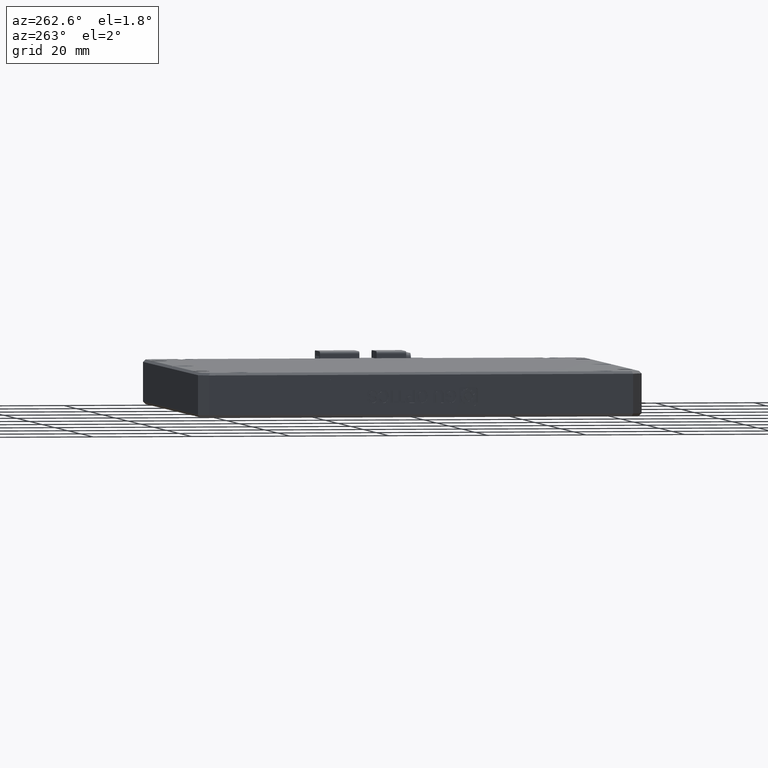
[diagram: clean part render]
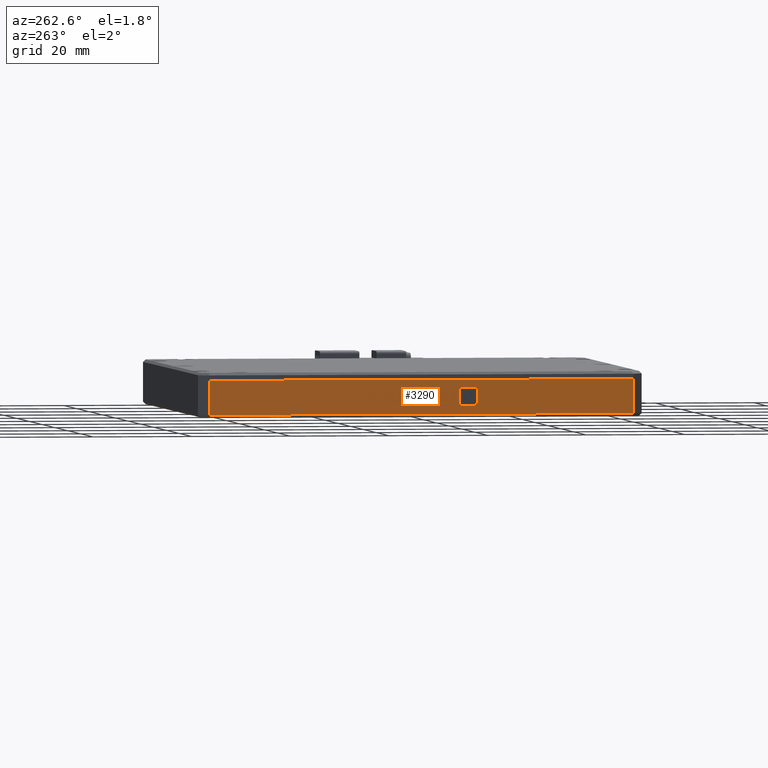
[diagram: same view with one face highlighted and labeled with its STEP entity id]
A machine part, auxiliary view. The second image highlights one B-rep face of the part: STEP entity #3290.
In plain terms, the highlighted planar face has unit normal (1, 0, 0).
Its self-contained STEP definition (entity closure, byte-faithful):
#6 = CARTESIAN_POINT ( 'NONE',  ( -77.07925925925924600, 23.42304713821372200, 1.292340100727977600 ) ) ;
#40 = CARTESIAN_POINT ( 'NONE',  ( -77.07925925925924600, 20.86301468824078100, 1.094665682123356000 ) ) ;
#45 = LINE ( 'NONE', #10327, #10717 ) ;
#47 = CARTESIAN_POINT ( 'NONE',  ( -77.07925925925924600, 30.28952902031220500, -0.1495203643883426200 ) ) ;
#49 = VERTEX_POINT ( 'NONE', #3426 ) ;
#56 = ORIENTED_EDGE ( 'NONE', *, *, #15913, .F. ) ;
#108 = CARTESIAN_POINT ( 'NONE',  ( -77.07925925925924600, 38.92426401219959300, 1.257456379797735400 ) ) ;
#112 = CARTESIAN_POINT ( 'NONE',  ( -77.07925925925924600, 30.86078375259968000, -0.1495203643883426200 ) ) ;
#123 = VERTEX_POINT ( 'NONE', #5346 ) ;
#191 = CARTESIAN_POINT ( 'NONE',  ( -77.07925925925924600, 70.93999999999996900, -2.500000000000000900 ) ) ;
#208 = CARTESIAN_POINT ( 'NONE',  ( -77.07925925925924600, 19.58485879056878100, -0.8124870443640894700 ) ) ;
#226 = ORIENTED_EDGE ( 'NONE', *, *, #11319, .F. ) ;
#236 = CARTESIAN_POINT ( 'NONE',  ( -77.07925925925924600, 35.30825535887358100, 0.1916775804467543700 ) ) ;
#239 = B_SPLINE_CURVE_WITH_KNOTS ( 'NONE', 3,
 ( #4079, #5476, #15191, #6856 ),
 .UNSPECIFIED., .F., .F.,
 ( 4, 4 ),
 ( 9.000000000000000000, 10.00000000000000000 ),
 .UNSPECIFIED. ) ;
#265 = CARTESIAN_POINT ( 'NONE',  ( -77.07925925925924600, 34.56352847947928100, 1.106293589100037400 ) ) ;
#275 = VECTOR ( 'NONE', #14746, 1000.000000000000000 ) ;
#288 = VERTEX_POINT ( 'NONE', #7298 ) ;
#315 = VERTEX_POINT ( 'NONE', #10515 ) ;
#319 = EDGE_CURVE ( 'NONE', #4731, #16075, #9759, .T. ) ;
#336 = EDGE_CURVE ( 'NONE', #3884, #9138, #8729, .T. ) ;
#339 = CARTESIAN_POINT ( 'NONE',  ( -77.07925925925924600, 37.55014286563404400, 0.2847008362606984200 ) ) ;
#385 = CARTESIAN_POINT ( 'NONE',  ( -77.07925925925924600, 38.85916125395203100, 0.5946656821233485800 ) ) ;
#396 = CARTESIAN_POINT ( 'NONE',  ( -77.07925925925924600, 37.66946412036628500, 0.1760610309605170600 ) ) ;
#404 = DIRECTION ( 'NONE',  ( -0.0000000000000000000, -0.0000000000000000000, 1.000000000000000000 ) ) ;
#414 = EDGE_CURVE ( 'NONE', #5827, #8842, #8484, .T. ) ;
#418 = CARTESIAN_POINT ( 'NONE',  ( -77.07925925925924600, 34.59962907439560100, 1.928055352215251500 ) ) ;
#426 = CARTESIAN_POINT ( 'NONE',  ( -77.07925925925924600, 23.07590003166967600, 0.5481540542163730900 ) ) ;
#428 = CARTESIAN_POINT ( 'NONE',  ( -77.07925925925924600, 31.13566206520144400, 0.6644331239837528700 ) ) ;
#452 = CARTESIAN_POINT ( 'NONE',  ( -77.07925925925924600, 37.91540787374656000, 0.1760610309605170600 ) ) ;
#488 = B_SPLINE_CURVE_WITH_KNOTS ( 'NONE', 3,
 ( #12400, #15122, #11207, #11136 ),
 .UNSPECIFIED., .F., .F.,
 ( 4, 4 ),
 ( 3.000000000000000000, 4.000000000000000000 ),
 .UNSPECIFIED. ) ;
#500 = LINE ( 'NONE', #10371, #7855 ) ;
#519 = EDGE_CURVE ( 'NONE', #16996, #15179, #8351, .T. ) ;
#552 = DIRECTION ( 'NONE',  ( -0.0000000000000000000, 1.000000000000000000, -4.504920936912119600E-015 ) ) ;
#571 = ORIENTED_EDGE ( 'NONE', *, *, #2791, .F. ) ;
#598 = CARTESIAN_POINT ( 'NONE',  ( -77.07925925925924600, 22.06711149732685200, 2.059781961193163400 ) ) ;
#607 = VERTEX_POINT ( 'NONE', #10795 ) ;
#614 = B_SPLINE_CURVE_WITH_KNOTS ( 'NONE', 3,
 ( #14798, #13384, #5062, #6444 ),
 .UNSPECIFIED., .F., .F.,
 ( 4, 4 ),
 ( 4.000000000000000000, 5.000000000000000000 ),
 .UNSPECIFIED. ) ;
#654 = VERTEX_POINT ( 'NONE', #16424 ) ;
#694 = CARTESIAN_POINT ( 'NONE',  ( -77.07925925925924600, 35.68082161090166700, -0.1844040853185499600 ) ) ;
#710 = ORIENTED_EDGE ( 'NONE', *, *, #10323, .F. ) ;
#766 = CARTESIAN_POINT ( 'NONE',  ( -77.07925925925924600, 23.07590003166967600, 0.5481540542163730900 ) ) ;
#809 = CARTESIAN_POINT ( 'NONE',  ( -77.07925925925924600, 20.26458653213977700, -0.5814896892637408900 ) ) ;
#818 = ORIENTED_EDGE ( 'NONE', *, *, #2026, .F. ) ;
#937 = CARTESIAN_POINT ( 'NONE',  ( -77.07925925925924600, 20.86301468824078100, 1.094665682123356000 ) ) ;
#1024 = B_SPLINE_CURVE_WITH_KNOTS ( 'NONE', 3,
 ( #16351, #9400, #2496, #12215 ),
 .UNSPECIFIED., .F., .F.,
 ( 4, 4 ),
 ( 7.000000000000000000, 8.000000000000000000 ),
 .UNSPECIFIED. ) ;
#1046 = CARTESIAN_POINT ( 'NONE',  ( -77.07925925925924600, 38.93136244378445800, 2.148816574497554900 ) ) ;
#1124 = LINE ( 'NONE', #1505, #8522 ) ;
#1130 = CARTESIAN_POINT ( 'NONE',  ( -77.07925925925924600, 22.59861501274060900, 1.676061030960514800 ) ) ;
#1133 = VERTEX_POINT ( 'NONE', #11759 ) ;
#1158 = CARTESIAN_POINT ( 'NONE',  ( -77.07925925925924600, 38.61321750057187100, 2.396991263518607300 ) ) ;
#1219 = CARTESIAN_POINT ( 'NONE',  ( -77.07925925925924600, 31.13566206520144400, 0.6644331239837528700 ) ) ;
#1222 = EDGE_CURVE ( 'NONE', #1660, #4731, #7098, .T. ) ;
#1239 = VECTOR ( 'NONE', #13709, 1000.000000000000000 ) ;
#1252 = EDGE_CURVE ( 'NONE', #9197, #4217, #6063, .T. ) ;
#1279 = VECTOR ( 'NONE', #9933, 1000.000000000000000 ) ;
#1306 = VECTOR ( 'NONE', #9165, 1000.000000000000000 ) ;
#1312 = EDGE_CURVE ( 'NONE', #8842, #7938, #10723, .T. ) ;
#1332 = CARTESIAN_POINT ( 'NONE',  ( -77.07925925925924600, 38.92426401219959300, 1.652805217006999300 ) ) ;
#1400 = CARTESIAN_POINT ( 'NONE',  ( -77.07925925925924600, 25.00680863091261900, -0.1495203643883218100 ) ) ;
#1412 = CARTESIAN_POINT ( 'NONE',  ( -77.07925925925924600, 37.96962637023114000, 2.396991263518610800 ) ) ;
#1436 = CARTESIAN_POINT ( 'NONE',  ( -77.07925925925924600, 32.67602171906811700, 2.350479635611708100 ) ) ;
#1474 = VERTEX_POINT ( 'NONE', #17207 ) ;
#1505 = CARTESIAN_POINT ( 'NONE',  ( -77.07925925925924600, 22.59861501274060900, 1.257456379797790900 ) ) ;
#1513 = CARTESIAN_POINT ( 'NONE',  ( -77.07925925925924600, 22.05629483967395300, 2.396991263518666300 ) ) ;
#1525 = EDGE_CURVE ( 'NONE', #14403, #15918, #500, .T. ) ;
#1636 = B_SPLINE_CURVE_WITH_KNOTS ( 'NONE', 3,
 ( #16626, #13791, #11087, #2749 ),
 .UNSPECIFIED., .F., .F.,
 ( 4, 4 ),
 ( 4.000000000000000000, 5.000000000000000000 ),
 .UNSPECIFIED. ) ;
#1645 = CARTESIAN_POINT ( 'NONE',  ( -77.07925925925924600, 31.14276049678585400, 0.1219101385862772500 ) ) ;
#1660 = VERTEX_POINT ( 'NONE', #6869 ) ;
#1676 = CARTESIAN_POINT ( 'NONE',  ( -77.07925925925924600, 37.89370695433067500, 2.071409868169837900 ) ) ;
#1730 = ORIENTED_EDGE ( 'NONE', *, *, #15451, .F. ) ;
#1766 = B_SPLINE_CURVE_WITH_KNOTS ( 'NONE', 3,
 ( #5340, #8117, #9535, #1219 ),
 .UNSPECIFIED., .F., .F.,
 ( 4, 4 ),
 ( 6.000000000000000000, 7.000000000000000000 ),
 .UNSPECIFIED. ) ;
#1798 = DIRECTION ( 'NONE',  ( -0.0000000000000000000, 1.000000000000000000, -0.0000000000000000000 ) ) ;
#1801 = LINE ( 'NONE', #9295, #9166 ) ;
#1805 = CARTESIAN_POINT ( 'NONE',  ( -77.07925925925924600, 38.24443707872235600, 1.358287910354801600 ) ) ;
#1842 = DIRECTION ( 'NONE',  ( -0.0000000000000000000, 1.000000000000000000, -0.0000000000000000000 ) ) ;
#1866 = CARTESIAN_POINT ( 'NONE',  ( -77.07925925925924600, 35.82184378504991400, 2.059781961193115000 ) ) ;
#1874 = EDGE_CURVE ( 'NONE', #9239, #8858, #4767, .T. ) ;
#1893 = B_SPLINE_CURVE_WITH_KNOTS ( 'NONE', 3,
 ( #10356, #4798, #15952, #7601 ),
 .UNSPECIFIED., .F., .F.,
 ( 4, 4 ),
 ( 9.000000000000000000, 10.00000000000000000 ),
 .UNSPECIFIED. ) ;
#1907 = CARTESIAN_POINT ( 'NONE',  ( -77.07925925925924600, 22.53357985860313000, 0.5481540542163730900 ) ) ;
#1933 = DIRECTION ( 'NONE',  ( -0.0000000000000000000, -1.000000000000000000, 3.366795205228711200E-015 ) ) ;
#1980 = DIRECTION ( 'NONE',  ( 1.000000000000000000, 0.0000000000000000000, 0.0000000000000000000 ) ) ;
#1982 = CARTESIAN_POINT ( 'NONE',  ( -77.07925925925924600, 37.02594059413586100, 0.5016424263094010300 ) ) ;
#1986 = VERTEX_POINT ( 'NONE', #8963 ) ;
#2010 = B_SPLINE_CURVE_WITH_KNOTS ( 'NONE', 3,
 ( #8704, #1805, #12932, #4577 ),
 .UNSPECIFIED., .F., .F.,
 ( 4, 4 ),
 ( 3.000000000000000000, 4.000000000000000000 ),
 .UNSPECIFIED. ) ;
#2026 = EDGE_CURVE ( 'NONE', #5468, #4782, #45, .T. ) ;
#2057 = EDGE_LOOP ( 'NONE', ( #8316, #226, #8339, #14788, #2688, #9381, #13099, #5706, #16156, #8048, #818, #14989, #12725, #11238 ) ) ;
#2086 = EDGE_CURVE ( 'NONE', #13702, #14403, #16364, .T. ) ;
#2110 = VECTOR ( 'NONE', #5147, 1000.000000000000000 ) ;
#2129 = EDGE_CURVE ( 'NONE', #11427, #3944, #7651, .T. ) ;
#2148 = FACE_OUTER_BOUND ( 'NONE', #2459, .T. ) ;
#2161 = CARTESIAN_POINT ( 'NONE',  ( -77.07925925925924600, 22.56609743567170100, -0.1844040853185048600 ) ) ;
#2187 = EDGE_LOOP ( 'NONE', ( #14971, #11210, #6495, #11426 ) ) ;
#2197 = EDGE_CURVE ( 'NONE', #18032, #3884, #4658, .T. ) ;
#2205 = CARTESIAN_POINT ( 'NONE',  ( -77.07925925925924600, 37.28249819283777100, 1.187688937937247900 ) ) ;
#2235 = DIRECTION ( 'NONE',  ( -0.0000000000000000000, -1.000000000000000000, -0.0000000000000000000 ) ) ;
#2288 = ORIENTED_EDGE ( 'NONE', *, *, #6460, .F. ) ;
#2326 = B_SPLINE_CURVE_WITH_KNOTS ( 'NONE', 3,
 ( #7869, #12091, #3772, #13462 ),
 .UNSPECIFIED., .F., .F.,
 ( 4, 4 ),
 ( 3.000000000000000000, 4.000000000000000000 ),
 .UNSPECIFIED. ) ;
#2364 = CARTESIAN_POINT ( 'NONE',  ( -77.07925925925924600, 22.02370965849506500, -0.1844040853185013900 ) ) ;
#2384 = ORIENTED_EDGE ( 'NONE', *, *, #12396, .F. ) ;
#2396 = EDGE_CURVE ( 'NONE', #7871, #16788, #16564, .T. ) ;
#2399 = CARTESIAN_POINT ( 'NONE',  ( -77.07925925925924600, 25.00680863091262700, 1.420247077472224200 ) ) ;
#2409 = CARTESIAN_POINT ( 'NONE',  ( -77.07925925925924600, 34.97929375800832500, 2.358118900078930700 ) ) ;
#2459 = EDGE_LOOP ( 'NONE', ( #16543, #8948, #10777, #3793 ) ) ;
#2491 = EDGE_LOOP ( 'NONE', ( #3627, #16144, #9554, #2384, #6440, #14940, #9301, #4552 ) ) ;
#2496 = CARTESIAN_POINT ( 'NONE',  ( -77.07925925925924600, 16.76722659435756700, 2.915938289259529400 ) ) ;
#2510 = CARTESIAN_POINT ( 'NONE',  ( -77.07925925925924600, 35.96644897704556600, 0.1760610309605240000 ) ) ;
#2519 = CARTESIAN_POINT ( 'NONE',  ( -77.07925925925924600, 34.56352847947928100, 1.106293589100037400 ) ) ;
#2543 = B_SPLINE_CURVE_WITH_KNOTS ( 'NONE', 3,
 ( #2364, #10682, #5129, #14880 ),
 .UNSPECIFIED., .F., .F.,
 ( 4, 4 ),
 ( 12.00000000000000000, 13.00000000000000000 ),
 .UNSPECIFIED. ) ;
#2561 = FACE_BOUND ( 'NONE', #2491, .T. ) ;
#2568 = CARTESIAN_POINT ( 'NONE',  ( -77.07925925925924600, 35.70252253031767300, 2.396991263518617900 ) ) ;
#2620 = EDGE_LOOP ( 'NONE', ( #13059, #5486, #14153, #14811, #13463, #12269, #18069, #10255, #15371, #3668 ) ) ;
#2644 = VERTEX_POINT ( 'NONE', #12903 ) ;
#2645 = EDGE_LOOP ( 'NONE', ( #17004, #17510, #14998, #14418, #13348, #11763, #10891, #10218, #9541, #7965, #1730, #18018, #15706, #2288 ) ) ;
#2652 = CARTESIAN_POINT ( 'NONE',  ( -77.07925925925924600, 16.53616129270404800, 0.003206651843962876600 ) ) ;
#2688 = ORIENTED_EDGE ( 'NONE', *, *, #15785, .F. ) ;
#2700 = VECTOR ( 'NONE', #1842, 1000.000000000000000 ) ;
#2749 = CARTESIAN_POINT ( 'NONE',  ( -77.07925925925924600, 24.47523751138845000, 2.059781961193149600 ) ) ;
#2751 = CARTESIAN_POINT ( 'NONE',  ( -77.07925925925924600, 38.92426401219959300, 1.652805217006999300 ) ) ;
#2783 = CARTESIAN_POINT ( 'NONE',  ( -77.07925925925924600, 36.97165449354120900, 1.490014519332564500 ) ) ;
#2791 = EDGE_CURVE ( 'NONE', #12200, #1133, #3414, .T. ) ;
#2801 = CARTESIAN_POINT ( 'NONE',  ( -77.07925925925924600, 37.90459121609365700, -0.1844040853185569000 ) ) ;
#2915 = CARTESIAN_POINT ( 'NONE',  ( -77.07925925925924600, 27.79459932858694400, 2.396991263518645400 ) ) ;
#2930 = B_SPLINE_CURVE_WITH_KNOTS ( 'NONE', 3,
 ( #13638, #12582, #12218, #12157 ),
 .UNSPECIFIED., .F., .F.,
 ( 4, 4 ),
 ( 3.000000000000000000, 4.000000000000000000 ),
 .UNSPECIFIED. ) ;
#2957 = CARTESIAN_POINT ( 'NONE',  ( -77.07925925925924600, 35.70252253031767300, 2.396991263518617900 ) ) ;
#2992 = CARTESIAN_POINT ( 'NONE',  ( -77.07925925925924600, 37.96962637023113300, 0.8621075425884750000 ) ) ;
#3021 = CARTESIAN_POINT ( 'NONE',  ( -77.07925925925924600, 29.79054308196713700, 1.478386612355858700 ) ) ;
#3030 = FACE_BOUND ( 'NONE', #3762, .T. ) ;
#3049 = B_SPLINE_CURVE_WITH_KNOTS ( 'NONE', 3,
 ( #15849, #17272, #8898, #598 ),
 .UNSPECIFIED., .F., .F.,
 ( 4, 4 ),
 ( 4.000000000000000000, 5.000000000000000000 ),
 .UNSPECIFIED. ) ;
#3068 = CARTESIAN_POINT ( 'NONE',  ( -77.07925925925924600, 32.67602171906811700, 2.350479635611708100 ) ) ;
#3113 = EDGE_CURVE ( 'NONE', #123, #7871, #12713, .T. ) ;
#3131 = LINE ( 'NONE', #3724, #17487 ) ;
#3135 = VERTEX_POINT ( 'NONE', #937 ) ;
#3223 = DIRECTION ( 'NONE',  ( -0.0000000000000000000, -7.459310946700470900E-015, -1.000000000000000000 ) ) ;
#3290 = ADVANCED_FACE ( 'NONE', ( #3030, #17385, #6255, #13629, #2561, #16956, #13219, #9502, #5846, #2148 ), #16082, .F. ) ;
#3293 = B_SPLINE_CURVE_WITH_KNOTS ( 'NONE', 3,
 ( #13196, #9110, #2205, #11919 ),
 .UNSPECIFIED., .F., .F.,
 ( 4, 4 ),
 ( 4.000000000000000000, 5.000000000000000000 ),
 .UNSPECIFIED. ) ;
#3296 = CARTESIAN_POINT ( 'NONE',  ( -77.07925925925924600, 37.55744410954972800, 0.5016424263094010300 ) ) ;
#3329 = CARTESIAN_POINT ( 'NONE',  ( -77.07925925925924600, 35.35165719770536400, 2.028886882772314300 ) ) ;
#3330 = CARTESIAN_POINT ( 'NONE',  ( -77.07925925925924600, 36.97165449354120900, 1.490014519332564500 ) ) ;
#3391 = CARTESIAN_POINT ( 'NONE',  ( -77.07925925925924600, 35.71333918797023400, 0.1760610309605240000 ) ) ;
#3398 = CARTESIAN_POINT ( 'NONE',  ( -77.07925925925924600, 37.23916395811652800, 1.869915817331480000 ) ) ;
#3414 = B_SPLINE_CURVE_WITH_KNOTS ( 'NONE', 3,
 ( #428, #1645, #112, #47 ),
 .UNSPECIFIED., .F., .F.,
 ( 4, 4 ),
 ( 5.000000000000000000, 6.000000000000000000 ),
 .UNSPECIFIED. ) ;
#3419 = B_SPLINE_CURVE_WITH_KNOTS ( 'NONE', 3,
 ( #8907, #15855, #6169, #15921 ),
 .UNSPECIFIED., .F., .F.,
 ( 4, 4 ),
 ( 2.000000000000000000, 3.000000000000000000 ),
 .UNSPECIFIED. ) ;
#3426 = CARTESIAN_POINT ( 'NONE',  ( -77.07925925925924600, 22.59861501274060900, 1.676061030960514800 ) ) ;
#3431 = EDGE_CURVE ( 'NONE', #15204, #11366, #11251, .T. ) ;
#3447 = CARTESIAN_POINT ( 'NONE',  ( -77.07925925925924600, 37.54284162171836700, 0.6954972126804182000 ) ) ;
#3452 = CARTESIAN_POINT ( 'NONE',  ( -77.07925925925924600, 37.89370695433067500, 2.071409868169837900 ) ) ;
#3468 = ORIENTED_EDGE ( 'NONE', *, *, #6804, .F. ) ;
#3490 = VECTOR ( 'NONE', #10581, 1000.000000000000000 ) ;
#3495 = VERTEX_POINT ( 'NONE', #5932 ) ;
#3506 = EDGE_LOOP ( 'NONE', ( #571, #4192, #7816, #15939, #10719, #9059, #9464 ) ) ;
#3549 = CARTESIAN_POINT ( 'NONE',  ( -77.07925925925924600, 33.44616774394656700, -0.1495203643883530300 ) ) ;
#3568 = CARTESIAN_POINT ( 'NONE',  ( -77.07925925925924600, 37.54662745189683200, 2.063770603702497200 ) ) ;
#3571 = CARTESIAN_POINT ( 'NONE',  ( -77.07925925925924600, 36.97165449354120900, 1.931874984448859400 ) ) ;
#3584 = EDGE_CURVE ( 'NONE', #16168, #6347, #14091, .T. ) ;
#3596 = CARTESIAN_POINT ( 'NONE',  ( -77.07925925925924600, -17.05999999999999200, 4.500000000000000000 ) ) ;
#3625 = CARTESIAN_POINT ( 'NONE',  ( -77.07925925925924600, 37.96962637023113300, 0.8621075425884750000 ) ) ;
#3627 = ORIENTED_EDGE ( 'NONE', *, *, #5532, .F. ) ;
#3657 = CARTESIAN_POINT ( 'NONE',  ( -77.07925925925924600, 34.25978321176701500, 2.350479635611701000 ) ) ;
#3668 = ORIENTED_EDGE ( 'NONE', *, *, #9325, .F. ) ;
#3724 = CARTESIAN_POINT ( 'NONE',  ( -77.07925925925924600, -15.05999999999997700, 4.500000000000000000 ) ) ;
#3727 = B_SPLINE_CURVE_WITH_KNOTS ( 'NONE', 3,
 ( #7159, #15498, #236, #9960 ),
 .UNSPECIFIED., .F., .F.,
 ( 4, 4 ),
 ( 2.000000000000000000, 3.000000000000000000 ),
 .UNSPECIFIED. ) ;
#3741 = CARTESIAN_POINT ( 'NONE',  ( -77.07925925925924600, 36.20150846866273800, 0.6411773100302754500 ) ) ;
#3762 = EDGE_LOOP ( 'NONE', ( #17231, #56, #710, #4851 ) ) ;
#3763 = EDGE_CURVE ( 'NONE', #1986, #15204, #488, .T. ) ;
#3772 = CARTESIAN_POINT ( 'NONE',  ( -77.07925925925924600, 21.40540246541742400, 1.703305487423478800 ) ) ;
#3790 = CARTESIAN_POINT ( 'NONE',  ( -77.07925925925924600, 37.68034838212949500, 0.8155959146814439900 ) ) ;
#3793 = ORIENTED_EDGE ( 'NONE', *, *, #2129, .T. ) ;
#3805 = CARTESIAN_POINT ( 'NONE',  ( -77.07925925925924600, 36.12910446649916500, 0.3312124641676218500 ) ) ;
#3816 = DIRECTION ( 'NONE',  ( -0.0000000000000000000, -2.775557561562827500E-015, -1.000000000000000000 ) ) ;
#3879 = DIRECTION ( 'NONE',  ( -0.0000000000000000000, 1.000000000000000000, -6.952995436024301200E-015 ) ) ;
#3884 = VERTEX_POINT ( 'NONE', #13969 ) ;
#3885 = CARTESIAN_POINT ( 'NONE',  ( -77.07925925925924600, 26.63390435833287700, 1.117921496076795100 ) ) ;
#3890 = EDGE_CURVE ( 'NONE', #10434, #16168, #17284, .T. ) ;
#3924 = EDGE_CURVE ( 'NONE', #654, #9197, #17158, .T. ) ;
#3941 = CARTESIAN_POINT ( 'NONE',  ( -77.07925925925924600, 26.67000495324897700, 0.2807121937512362400 ) ) ;
#3944 = VERTEX_POINT ( 'NONE', #191 ) ;
#3947 = EDGE_LOOP ( 'NONE', ( #3468, #4675, #12968, #14502, #17399, #11709, #13449, #7647 ) ) ;
#4068 = EDGE_CURVE ( 'NONE', #15730, #654, #2930, .T. ) ;
#4079 = CARTESIAN_POINT ( 'NONE',  ( -77.07925925925924600, 36.71137866877080600, 0.6411773100302754500 ) ) ;
#4177 = VERTEX_POINT ( 'NONE', #8690 ) ;
#4192 = ORIENTED_EDGE ( 'NONE', *, *, #5821, .F. ) ;
#4201 = CARTESIAN_POINT ( 'NONE',  ( -77.07925925925924600, 37.34050251950090900, -0.1765958105754417100 ) ) ;
#4217 = VERTEX_POINT ( 'NONE', #7984 ) ;
#4310 = CARTESIAN_POINT ( 'NONE',  ( -77.07925925925924600, 32.67602171906811000, 0.1993168449139944000 ) ) ;
#4358 = CARTESIAN_POINT ( 'NONE',  ( -77.07925925925924600, 20.26458653213978400, 2.236176554321737300 ) ) ;
#4395 = VECTOR ( 'NONE', #11301, 1000.000000000000000 ) ;
#4427 = VERTEX_POINT ( 'NONE', #694 ) ;
#4552 = ORIENTED_EDGE ( 'NONE', *, *, #2086, .F. ) ;
#4577 = CARTESIAN_POINT ( 'NONE',  ( -77.07925925925924600, 38.39269289267564000, 1.687688937937300300 ) ) ;
#4593 = LINE ( 'NONE', #16649, #7841 ) ;
#4631 = VERTEX_POINT ( 'NONE', #13987 ) ;
#4641 = LINE ( 'NONE', #5566, #8307 ) ;
#4643 = CARTESIAN_POINT ( 'NONE',  ( -77.07925925925924600, 36.65709256817604000, 1.501642426309405500 ) ) ;
#4658 = B_SPLINE_CURVE_WITH_KNOTS ( 'NONE', 3,
 ( #11779, #11367, #13800, #13615 ),
 .UNSPECIFIED., .F., .F.,
 ( 4, 4 ),
 ( 13.00000000000000000, 14.00000000000000000 ),
 .UNSPECIFIED. ) ;
#4675 = ORIENTED_EDGE ( 'NONE', *, *, #9610, .F. ) ;
#4692 = VECTOR ( 'NONE', #4859, 1000.000000000000000 ) ;
#4707 = EDGE_CURVE ( 'NONE', #8781, #4631, #11621, .T. ) ;
#4724 = CARTESIAN_POINT ( 'NONE',  ( -77.07925925925924600, 34.56352847947928100, 1.106293589100037400 ) ) ;
#4731 = VERTEX_POINT ( 'NONE', #11803 ) ;
#4744 = VECTOR ( 'NONE', #9918, 1000.000000000000000 ) ;
#4757 = LINE ( 'NONE', #4643, #12164 ) ;
#4767 = B_SPLINE_CURVE_WITH_KNOTS ( 'NONE', 3,
 ( #2519, #418, #2409, #2568 ),
 .UNSPECIFIED., .F., .F.,
 ( 4, 4 ),
 ( 7.000000000000000000, 8.000000000000000000 ),
 .UNSPECIFIED. ) ;
#4782 = VERTEX_POINT ( 'NONE', #7305 ) ;
#4795 = CARTESIAN_POINT ( 'NONE',  ( -77.07925925925924600, 25.56359608358969000, 2.059781961193149600 ) ) ;
#4798 = CARTESIAN_POINT ( 'NONE',  ( -77.07925925925924600, 23.40134621879772700, 2.052142696725815600 ) ) ;
#4851 = ORIENTED_EDGE ( 'NONE', *, *, #4707, .F. ) ;
#4859 = DIRECTION ( 'NONE',  ( -0.0000000000000000000, -0.0000000000000000000, 1.000000000000000000 ) ) ;
#4892 = B_SPLINE_CURVE_WITH_KNOTS ( 'NONE', 3,
 ( #12342, #15124, #17974, #9590 ),
 .UNSPECIFIED., .F., .F.,
 ( 4, 4 ),
 ( 6.000000000000000000, 7.000000000000000000 ),
 .UNSPECIFIED. ) ;
#4904 = VECTOR ( 'NONE', #1798, 1000.000000000000000 ) ;
#4942 = LINE ( 'NONE', #5395, #1239 ) ;
#4985 = CARTESIAN_POINT ( 'NONE',  ( -77.07925925925924600, 19.58485879056878100, -0.8124870443640894700 ) ) ;
#5062 = CARTESIAN_POINT ( 'NONE',  ( -77.07925925925924600, 36.13268748434670400, 2.075398510679230800 ) ) ;
#5117 = LINE ( 'NONE', #16011, #4692 ) ;
#5129 = CARTESIAN_POINT ( 'NONE',  ( -77.07925925925924600, 20.89181403924131400, 0.2807121937512570000 ) ) ;
#5147 = DIRECTION ( 'NONE',  ( 0.0000000000000000000, 1.000000000000000000, 0.0000000000000000000 ) ) ;
#5305 = CARTESIAN_POINT ( 'NONE',  ( -77.07925925925924600, 17.21595019142493400, -0.8124870443640824800 ) ) ;
#5340 = CARTESIAN_POINT ( 'NONE',  ( -77.07925925925924600, 30.28952902031221200, 1.478386612355855100 ) ) ;
#5346 = CARTESIAN_POINT ( 'NONE',  ( -77.07925925925924600, 19.58485879056879500, 2.915938289259520900 ) ) ;
#5395 = CARTESIAN_POINT ( 'NONE',  ( -77.07925925925924600, 29.28074048596926500, -0.1495203643883391600 ) ) ;
#5457 = B_SPLINE_CURVE_WITH_KNOTS ( 'NONE', 3,
 ( #6870, #18063, #15279, #6936 ),
 .UNSPECIFIED., .F., .F.,
 ( 4, 4 ),
 ( 6.000000000000000000, 7.000000000000000000 ),
 .UNSPECIFIED. ) ;
#5468 = VERTEX_POINT ( 'NONE', #17091 ) ;
#5476 = CARTESIAN_POINT ( 'NONE',  ( -77.07925925925924600, 36.59557282777567600, 0.09865432463279991100 ) ) ;
#5486 = ORIENTED_EDGE ( 'NONE', *, *, #9406, .F. ) ;
#5500 = CARTESIAN_POINT ( 'NONE',  ( -77.07925925925924600, 36.65709256817604000, 1.501642426309405500 ) ) ;
#5532 = EDGE_CURVE ( 'NONE', #7673, #13702, #16420, .T. ) ;
#5544 = EDGE_CURVE ( 'NONE', #49, #607, #3049, .T. ) ;
#5566 = CARTESIAN_POINT ( 'NONE',  ( -77.07925925925924600, 34.25978321176701500, 2.350479635611701000 ) ) ;
#5605 = CARTESIAN_POINT ( 'NONE',  ( -77.07925925925924600, 37.02594059413586100, 0.5016424263094010300 ) ) ;
#5651 = CARTESIAN_POINT ( 'NONE',  ( -77.07925925925924600, 20.89181403924132100, 1.931874984448914900 ) ) ;
#5663 = LINE ( 'NONE', #4310, #9340 ) ;
#5696 = CARTESIAN_POINT ( 'NONE',  ( -77.07925925925924600, 28.91899089159397800, 1.924235719981657500 ) ) ;
#5706 = ORIENTED_EDGE ( 'NONE', *, *, #17114, .F. ) ;
#5725 = VERTEX_POINT ( 'NONE', #2399 ) ;
#5760 = CARTESIAN_POINT ( 'NONE',  ( -77.07925925925924600, 33.74991301165905400, -0.1495203643883530300 ) ) ;
#5817 = DIRECTION ( 'NONE',  ( -0.0000000000000000000, -0.0000000000000000000, -1.000000000000000000 ) ) ;
#5821 = EDGE_CURVE ( 'NONE', #12893, #12200, #1766, .T. ) ;
#5827 = VERTEX_POINT ( 'NONE', #10963 ) ;
#5846 = FACE_BOUND ( 'NONE', #2057, .T. ) ;
#5869 = EDGE_CURVE ( 'NONE', #5725, #1986, #1636, .T. ) ;
#5914 = VECTOR ( 'NONE', #7247, 1000.000000000000000 ) ;
#5932 = CARTESIAN_POINT ( 'NONE',  ( -77.07925925925924600, 38.36017531560706600, 0.5946656821233485800 ) ) ;
#5937 = ORIENTED_EDGE ( 'NONE', *, *, #15308, .F. ) ;
#5983 = DIRECTION ( 'NONE',  ( -0.0000000000000000000, -0.0000000000000000000, -1.000000000000000000 ) ) ;
#5999 = CARTESIAN_POINT ( 'NONE',  ( -77.07925925925924600, 32.15533486130737400, 2.350479635611708100 ) ) ;
#6063 = B_SPLINE_CURVE_WITH_KNOTS ( 'NONE', 3,
 ( #13110, #14016, #14518, #11716 ),
 .UNSPECIFIED., .F., .F.,
 ( 4, 4 ),
 ( 1.000000000000000000, 2.000000000000000000 ),
 .UNSPECIFIED. ) ;
#6089 = CARTESIAN_POINT ( 'NONE',  ( -77.07925925925924600, 35.09503199489314800, 1.129549403053604900 ) ) ;
#6146 = CARTESIAN_POINT ( 'NONE',  ( -77.07925925925924600, 22.94204389321650300, 2.210944751890760800 ) ) ;
#6169 = CARTESIAN_POINT ( 'NONE',  ( -77.07925925925924600, 21.61862582939830100, 0.2033054874235329400 ) ) ;
#6209 = CARTESIAN_POINT ( 'NONE',  ( -77.07925925925924600, 29.28074048596926500, -0.1495203643883391600 ) ) ;
#6221 = EDGE_CURVE ( 'NONE', #7237, #9004, #3131, .T. ) ;
#6234 = LINE ( 'NONE', #15710, #16465 ) ;
#6255 = FACE_BOUND ( 'NONE', #2645, .T. ) ;
#6270 = EDGE_CURVE ( 'NONE', #15641, #12893, #15729, .T. ) ;
#6304 = CARTESIAN_POINT ( 'NONE',  ( -77.07925925925924600, 29.79054308196713700, 2.350479635611718800 ) ) ;
#6306 = VECTOR ( 'NONE', #3223, 1000.000000000000000 ) ;
#6347 = VERTEX_POINT ( 'NONE', #2783 ) ;
#6371 = B_SPLINE_CURVE_WITH_KNOTS ( 'NONE', 3,
 ( #10352, #13145, #4795, #14543 ),
 .UNSPECIFIED., .F., .F.,
 ( 4, 4 ),
 ( 8.000000000000000000, 9.000000000000000000 ),
 .UNSPECIFIED. ) ;
#6380 = ORIENTED_EDGE ( 'NONE', *, *, #8787, .F. ) ;
#6415 = EDGE_CURVE ( 'NONE', #3135, #16996, #17292, .T. ) ;
#6440 = ORIENTED_EDGE ( 'NONE', *, *, #15174, .F. ) ;
#6441 = DIRECTION ( 'NONE',  ( -0.0000000000000000000, 2.775557561562827500E-015, 1.000000000000000000 ) ) ;
#6444 = CARTESIAN_POINT ( 'NONE',  ( -77.07925925925924600, 35.82184378504991400, 2.059781961193115000 ) ) ;
#6460 = EDGE_CURVE ( 'NONE', #9138, #1660, #16806, .T. ) ;
#6495 = ORIENTED_EDGE ( 'NONE', *, *, #4068, .F. ) ;
#6516 = VERTEX_POINT ( 'NONE', #8608 ) ;
#6561 = CARTESIAN_POINT ( 'NONE',  ( -77.07925925925924600, 22.59861501274060900, 2.396991263518662800 ) ) ;
#6603 = CARTESIAN_POINT ( 'NONE',  ( -77.07925925925924600, 27.79459932858693700, -0.1844040853185222000 ) ) ;
#6614 = VERTEX_POINT ( 'NONE', #3657 ) ;
#6626 = CARTESIAN_POINT ( 'NONE',  ( -77.07925925925924600, 22.05629483967395300, 2.396991263518666300 ) ) ;
#6662 = CARTESIAN_POINT ( 'NONE',  ( -77.07925925925924600, 23.08678429343267200, 1.838851728634953500 ) ) ;
#6693 = DIRECTION ( 'NONE',  ( -0.0000000000000000000, -1.000000000000000000, 2.929152229180575700E-015 ) ) ;
#6768 = VECTOR ( 'NONE', #10864, 1000.000000000000000 ) ;
#6804 = EDGE_CURVE ( 'NONE', #12689, #123, #4593, .T. ) ;
#6838 = VERTEX_POINT ( 'NONE', #15348 ) ;
#6842 = EDGE_CURVE ( 'NONE', #4217, #15730, #15990, .T. ) ;
#6856 = CARTESIAN_POINT ( 'NONE',  ( -77.07925925925924600, 35.68082161090166700, -0.1844040853185499600 ) ) ;
#6869 = CARTESIAN_POINT ( 'NONE',  ( -77.07925925925924600, 37.96962637023113300, 0.8621075425884750000 ) ) ;
#6870 = CARTESIAN_POINT ( 'NONE',  ( -77.07925925925924600, 38.85916125395203100, 0.5946656821233485800 ) ) ;
#6907 = VERTEX_POINT ( 'NONE', #15546 ) ;
#6936 = CARTESIAN_POINT ( 'NONE',  ( -77.07925925925924600, 37.90459121609365700, -0.1844040853185569000 ) ) ;
#6985 = CARTESIAN_POINT ( 'NONE',  ( -77.07925925925924600, 36.20150846866273800, 0.6411773100302754500 ) ) ;
#7004 = EDGE_CURVE ( 'NONE', #15179, #5468, #16545, .T. ) ;
#7016 = ORIENTED_EDGE ( 'NONE', *, *, #1312, .F. ) ;
#7098 = B_SPLINE_CURVE_WITH_KNOTS ( 'NONE', 3,
 ( #3625, #3790, #3447, #3296 ),
 .UNSPECIFIED., .F., .F.,
 ( 4, 4 ),
 ( 10.00000000000000000, 11.00000000000000000 ),
 .UNSPECIFIED. ) ;
#7159 = CARTESIAN_POINT ( 'NONE',  ( -77.07925925925924600, 35.09503199489314800, 1.129549403053604900 ) ) ;
#7237 = VERTEX_POINT ( 'NONE', #17505 ) ;
#7247 = DIRECTION ( 'NONE',  ( -0.0000000000000000000, 1.000000000000000000, -0.0000000000000000000 ) ) ;
#7285 = EDGE_CURVE ( 'NONE', #17675, #13245, #614, .T. ) ;
#7298 = CARTESIAN_POINT ( 'NONE',  ( -77.07925925925924600, 29.28074048596927200, 2.350479635611718800 ) ) ;
#7305 = CARTESIAN_POINT ( 'NONE',  ( -77.07925925925924600, 21.90438840376293700, 0.9086191704954504900 ) ) ;
#7374 = EDGE_CURVE ( 'NONE', #8782, #5725, #16520, .T. ) ;
#7432 = VERTEX_POINT ( 'NONE', #13789 ) ;
#7486 = EDGE_CURVE ( 'NONE', #13624, #8782, #13052, .T. ) ;
#7567 = VECTOR ( 'NONE', #17477, 1000.000000000000000 ) ;
#7598 = CARTESIAN_POINT ( 'NONE',  ( -77.07925925925924600, 33.44616774394656700, -0.1495203643883530900 ) ) ;
#7601 = CARTESIAN_POINT ( 'NONE',  ( -77.07925925925924600, 24.46442085373577100, 2.396991263518652500 ) ) ;
#7647 = ORIENTED_EDGE ( 'NONE', *, *, #3113, .F. ) ;
#7651 = LINE ( 'NONE', #14156, #275 ) ;
#7654 = EDGE_CURVE ( 'NONE', #8191, #13749, #6371, .T. ) ;
#7664 = ORIENTED_EDGE ( 'NONE', *, *, #414, .F. ) ;
#7671 = LINE ( 'NONE', #17083, #10934 ) ;
#7673 = VERTEX_POINT ( 'NONE', #7598 ) ;
#7732 = EDGE_CURVE ( 'NONE', #12910, #7673, #10859, .T. ) ;
#7759 = CARTESIAN_POINT ( 'NONE',  ( -77.07925925925924600, 38.13234946379503800, 0.1838693057036287800 ) ) ;
#7816 = ORIENTED_EDGE ( 'NONE', *, *, #6270, .F. ) ;
#7841 = VECTOR ( 'NONE', #13810, 1000.000000000000000 ) ;
#7855 = VECTOR ( 'NONE', #552, 1000.000000000000000 ) ;
#7869 = CARTESIAN_POINT ( 'NONE',  ( -77.07925925925924600, 22.06711149732685200, 2.059781961193163400 ) ) ;
#7871 = VERTEX_POINT ( 'NONE', #4358 ) ;
#7873 = VECTOR ( 'NONE', #11075, 1000.000000000000000 ) ;
#7938 = VERTEX_POINT ( 'NONE', #10147 ) ;
#7965 = ORIENTED_EDGE ( 'NONE', *, *, #13225, .F. ) ;
#7984 = CARTESIAN_POINT ( 'NONE',  ( -77.07925925925924600, 27.79459932858694400, 2.396991263518645400 ) ) ;
#8035 = VERTEX_POINT ( 'NONE', #15920 ) ;
#8048 = ORIENTED_EDGE ( 'NONE', *, *, #10399, .F. ) ;
#8052 = LINE ( 'NONE', #11255, #4395 ) ;
#8117 = CARTESIAN_POINT ( 'NONE',  ( -77.07925925925924600, 30.86801739240528200, 1.494003161842084600 ) ) ;
#8154 = CARTESIAN_POINT ( 'NONE',  ( -77.07925925925924600, 16.76722659435755600, -0.8124870443640790400 ) ) ;
#8191 = VERTEX_POINT ( 'NONE', #9370 ) ;
#8204 = CARTESIAN_POINT ( 'NONE',  ( -77.07925925925924600, 30.28952902031221200, 1.478386612355855100 ) ) ;
#8217 = B_SPLINE_CURVE_WITH_KNOTS ( 'NONE', 3,
 ( #9579, #8154, #11004, #2652 ),
 .UNSPECIFIED., .F., .F.,
 ( 4, 4 ),
 ( 1.000000000000000000, 2.000000000000000000 ),
 .UNSPECIFIED. ) ;
#8219 = ORIENTED_EDGE ( 'NONE', *, *, #13771, .F. ) ;
#8255 = CARTESIAN_POINT ( 'NONE',  ( -77.07925925925924600, 22.53357985860313000, 0.5481540542163730900 ) ) ;
#8277 = VECTOR ( 'NONE', #3879, 1000.000000000000000 ) ;
#8307 = VECTOR ( 'NONE', #16717, 1000.000000000000000 ) ;
#8316 = ORIENTED_EDGE ( 'NONE', *, *, #10174, .F. ) ;
#8339 = ORIENTED_EDGE ( 'NONE', *, *, #13867, .F. ) ;
#8351 = B_SPLINE_CURVE_WITH_KNOTS ( 'NONE', 3,
 ( #6626, #6561, #6146, #6662 ),
 .UNSPECIFIED., .F., .F.,
 ( 4, 4 ),
 ( 10.00000000000000000, 11.00000000000000000 ),
 .UNSPECIFIED. ) ;
#8382 = VERTEX_POINT ( 'NONE', #6 ) ;
#8435 = LINE ( 'NONE', #8577, #4744 ) ;
#8440 = CARTESIAN_POINT ( 'NONE',  ( -77.07925925925924600, 26.63390435833287700, 1.117921496076795100 ) ) ;
#8482 = EDGE_CURVE ( 'NONE', #4177, #15641, #9988, .T. ) ;
#8484 = B_SPLINE_CURVE_WITH_KNOTS ( 'NONE', 3,
 ( #3391, #2510, #3805, #3741 ),
 .UNSPECIFIED., .F., .F.,
 ( 4, 4 ),
 ( 1.000000000000000000, 2.000000000000000000 ),
 .UNSPECIFIED. ) ;
#8519 = CARTESIAN_POINT ( 'NONE',  ( -77.07925925925924600, 20.26458653213978400, 2.236176554321737300 ) ) ;
#8522 = VECTOR ( 'NONE', #14026, 1000.000000000000000 ) ;
#8552 = EDGE_CURVE ( 'NONE', #6516, #10434, #2010, .T. ) ;
#8563 = LINE ( 'NONE', #3596, #14009 ) ;
#8577 = CARTESIAN_POINT ( 'NONE',  ( -77.07925925925924600, 33.44616774394656700, 0.1993168449139909300 ) ) ;
#8608 = CARTESIAN_POINT ( 'NONE',  ( -77.07925925925924600, 37.94799305492544100, 1.303968007704658900 ) ) ;
#8625 = CARTESIAN_POINT ( 'NONE',  ( -77.07925925925924600, 20.26458653213977700, -0.1327321046655748100 ) ) ;
#8658 = VERTEX_POINT ( 'NONE', #17668 ) ;
#8690 = CARTESIAN_POINT ( 'NONE',  ( -77.07925925925924600, 29.79054308196713700, 2.350479635611718800 ) ) ;
#8704 = CARTESIAN_POINT ( 'NONE',  ( -77.07925925925924600, 37.94799305492544100, 1.303968007704658900 ) ) ;
#8729 = B_SPLINE_CURVE_WITH_KNOTS ( 'NONE', 3,
 ( #1412, #1158, #1046, #1332 ),
 .UNSPECIFIED., .F., .F.,
 ( 4, 4 ),
 ( 12.00000000000000000, 13.00000000000000000 ),
 .UNSPECIFIED. ) ;
#8781 = VERTEX_POINT ( 'NONE', #9601 ) ;
#8782 = VERTEX_POINT ( 'NONE', #16548 ) ;
#8787 = EDGE_CURVE ( 'NONE', #7938, #4427, #239, .T. ) ;
#8812 = CARTESIAN_POINT ( 'NONE',  ( -77.07925925925924600, 22.28405308737543700, 0.1644331239838391100 ) ) ;
#8831 = VECTOR ( 'NONE', #6693, 1000.000000000000000 ) ;
#8842 = VERTEX_POINT ( 'NONE', #6985 ) ;
#8858 = VERTEX_POINT ( 'NONE', #2957 ) ;
#8898 = CARTESIAN_POINT ( 'NONE',  ( -77.07925925925924600, 22.34185460170765600, 2.067590235936164000 ) ) ;
#8905 = EDGE_CURVE ( 'NONE', #2644, #12910, #8435, .T. ) ;
#8907 = CARTESIAN_POINT ( 'NONE',  ( -77.07925925925924600, 21.38370154600152500, 1.106293589100082500 ) ) ;
#8948 = ORIENTED_EDGE ( 'NONE', *, *, #6221, .F. ) ;
#8960 = VECTOR ( 'NONE', #13121, 1000.000000000000000 ) ;
#8963 = CARTESIAN_POINT ( 'NONE',  ( -77.07925925925924600, 24.47523751138845000, 2.059781961193149600 ) ) ;
#9004 = VERTEX_POINT ( 'NONE', #17356 ) ;
#9005 = ORIENTED_EDGE ( 'NONE', *, *, #11930, .F. ) ;
#9057 = DIRECTION ( 'NONE',  ( -0.0000000000000000000, -0.0000000000000000000, -1.000000000000000000 ) ) ;
#9059 = ORIENTED_EDGE ( 'NONE', *, *, #11415, .F. ) ;
#9068 = EDGE_CURVE ( 'NONE', #288, #4177, #14946, .T. ) ;
#9082 = VERTEX_POINT ( 'NONE', #10529 ) ;
#9110 = CARTESIAN_POINT ( 'NONE',  ( -77.07925925925924600, 36.97523751138840000, 0.9202470774721284200 ) ) ;
#9120 = VECTOR ( 'NONE', #13549, 1000.000000000000000 ) ;
#9138 = VERTEX_POINT ( 'NONE', #2751 ) ;
#9160 = VERTEX_POINT ( 'NONE', #12545 ) ;
#9165 = DIRECTION ( 'NONE',  ( -0.0000000000000000000, -2.929152155184212700E-015, -1.000000000000000000 ) ) ;
#9166 = VECTOR ( 'NONE', #6441, 1000.000000000000000 ) ;
#9168 = CARTESIAN_POINT ( 'NONE',  ( -77.07925925925924600, 38.36017531560706600, 0.5946656821233485800 ) ) ;
#9197 = VERTEX_POINT ( 'NONE', #8440 ) ;
#9237 = CARTESIAN_POINT ( 'NONE',  ( -77.07925925925924600, 27.05697088077738100, -0.1533399966219470300 ) ) ;
#9239 = VERTEX_POINT ( 'NONE', #265 ) ;
#9253 = CARTESIAN_POINT ( 'NONE',  ( -77.07925925925924600, 20.26458653213978400, 2.684839005573816300 ) ) ;
#9259 = LINE ( 'NONE', #5305, #8831 ) ;
#9266 = CARTESIAN_POINT ( 'NONE',  ( -77.07925925925924600, 31.38518883642913000, 0.1993168449139978700 ) ) ;
#9287 = DIRECTION ( 'NONE',  ( 0.0000000000000000000, 0.0000000000000000000, -1.000000000000000000 ) ) ;
#9295 = CARTESIAN_POINT ( 'NONE',  ( -77.07925925925924600, 29.28074048596927200, 2.350479635611718800 ) ) ;
#9301 = ORIENTED_EDGE ( 'NONE', *, *, #1525, .F. ) ;
#9325 = EDGE_CURVE ( 'NONE', #13749, #13624, #6234, .T. ) ;
#9340 = VECTOR ( 'NONE', #13980, 1000.000000000000000 ) ;
#9351 = CARTESIAN_POINT ( 'NONE',  ( -77.07925925925924600, 31.13566206520144400, 0.6644331239837528700 ) ) ;
#9370 = CARTESIAN_POINT ( 'NONE',  ( -77.07925925925924600, 24.46442085373577100, 2.396991263518652500 ) ) ;
#9381 = ORIENTED_EDGE ( 'NONE', *, *, #17067, .F. ) ;
#9400 = CARTESIAN_POINT ( 'NONE',  ( -77.07925925925924600, 16.53616129270405100, 2.684839005573830900 ) ) ;
#9406 = EDGE_CURVE ( 'NONE', #8382, #8191, #1893, .T. ) ;
#9414 = CARTESIAN_POINT ( 'NONE',  ( -77.07925925925924600, 23.94373399597479600, -0.1495203643883183400 ) ) ;
#9451 = DIRECTION ( 'NONE',  ( -0.0000000000000000000, -0.0000000000000000000, 1.000000000000000000 ) ) ;
#9453 = CARTESIAN_POINT ( 'NONE',  ( -77.07925925925924600, 21.90438840376294400, 1.257456379797794500 ) ) ;
#9460 = CARTESIAN_POINT ( 'NONE',  ( -77.07925925925924600, 25.52749548867336300, -0.1495203643883252800 ) ) ;
#9464 = ORIENTED_EDGE ( 'NONE', *, *, #16534, .F. ) ;
#9466 = EDGE_CURVE ( 'NONE', #17941, #6516, #3293, .T. ) ;
#9502 = FACE_BOUND ( 'NONE', #2620, .T. ) ;
#9515 = LINE ( 'NONE', #17687, #12367 ) ;
#9535 = CARTESIAN_POINT ( 'NONE',  ( -77.07925925925924600, 31.15006174070154200, 1.222572658867570100 ) ) ;
#9539 = CARTESIAN_POINT ( 'NONE',  ( -77.07925925925924600, 19.58485879056879500, 2.915938289259520900 ) ) ;
#9541 = ORIENTED_EDGE ( 'NONE', *, *, #11030, .F. ) ;
#9547 = EDGE_CURVE ( 'NONE', #9004, #3944, #12775, .T. ) ;
#9554 = ORIENTED_EDGE ( 'NONE', *, *, #8905, .F. ) ;
#9576 = LINE ( 'NONE', #3068, #5914 ) ;
#9579 = CARTESIAN_POINT ( 'NONE',  ( -77.07925925925924600, 17.21595019142493400, -0.8124870443640824800 ) ) ;
#9583 = VERTEX_POINT ( 'NONE', #14894 ) ;
#9590 = CARTESIAN_POINT ( 'NONE',  ( -77.07925925925924600, 36.65709256817604000, 1.978386612355890400 ) ) ;
#9601 = CARTESIAN_POINT ( 'NONE',  ( -77.07925925925924600, 33.74991301165905400, -0.1495203643883530300 ) ) ;
#9610 = EDGE_CURVE ( 'NONE', #6907, #12689, #1024, .T. ) ;
#9726 = DIRECTION ( 'NONE',  ( -0.0000000000000000000, -1.000000000000000000, 6.663212063531339100E-015 ) ) ;
#9759 = B_SPLINE_CURVE_WITH_KNOTS ( 'NONE', 3,
 ( #13015, #339, #396, #452 ),
 .UNSPECIFIED., .F., .F.,
 ( 4, 4 ),
 ( 9.000000000000000000, 10.00000000000000000 ),
 .UNSPECIFIED. ) ;
#9784 = EDGE_LOOP ( 'NONE', ( #5937, #6380, #7016, #7664, #8219, #9005, #13667, #15061, #15692, #16356 ) ) ;
#9834 = CARTESIAN_POINT ( 'NONE',  ( -77.07925925925924600, 21.28966422853282500, 2.365927174822091100 ) ) ;
#9918 = DIRECTION ( 'NONE',  ( -0.0000000000000000000, 1.000000000000000000, -4.504920936910819600E-015 ) ) ;
#9923 = CARTESIAN_POINT ( 'NONE',  ( -77.07925925925924600, 20.03345327809811500, 2.915938289259519100 ) ) ;
#9933 = DIRECTION ( 'NONE',  ( -0.0000000000000000000, -1.000000000000000000, 6.804568988772116100E-015 ) ) ;
#9960 = CARTESIAN_POINT ( 'NONE',  ( -77.07925925925924600, 35.71333918797023400, 0.1760610309605240000 ) ) ;
#9978 = LINE ( 'NONE', #17451, #13228 ) ;
#9988 = LINE ( 'NONE', #3021, #16978 ) ;
#10040 = CARTESIAN_POINT ( 'NONE',  ( -77.07925925925924600, 23.94373399597479600, 1.420247077472229600 ) ) ;
#10147 = CARTESIAN_POINT ( 'NONE',  ( -77.07925925925924600, 36.71137866877080600, 0.6411773100302754500 ) ) ;
#10174 = EDGE_CURVE ( 'NONE', #7432, #3135, #2543, .T. ) ;
#10215 = CARTESIAN_POINT ( 'NONE',  ( -77.07925925925924600, 22.45387461252421000, 0.2923401007279801100 ) ) ;
#10218 = ORIENTED_EDGE ( 'NONE', *, *, #15059, .F. ) ;
#10255 = ORIENTED_EDGE ( 'NONE', *, *, #7374, .F. ) ;
#10285 = CARTESIAN_POINT ( 'NONE',  ( -77.07925925925924600, 34.97199251409263400, -0.1378924574115154800 ) ) ;
#10323 = EDGE_CURVE ( 'NONE', #4631, #6614, #4641, .T. ) ;
#10327 = CARTESIAN_POINT ( 'NONE',  ( -77.07925925925924600, 21.90438840376293700, 0.9086191704954504900 ) ) ;
#10352 = CARTESIAN_POINT ( 'NONE',  ( -77.07925925925924600, 24.46442085373577100, 2.396991263518652500 ) ) ;
#10356 = CARTESIAN_POINT ( 'NONE',  ( -77.07925925925924600, 23.42304713821372200, 1.292340100727977600 ) ) ;
#10371 = CARTESIAN_POINT ( 'NONE',  ( -77.07925925925924600, 32.15533486130736700, 0.1993168449139944000 ) ) ;
#10399 = EDGE_CURVE ( 'NONE', #4782, #315, #10510, .T. ) ;
#10434 = VERTEX_POINT ( 'NONE', #17954 ) ;
#10449 = LINE ( 'NONE', #5760, #1279 ) ;
#10469 = B_SPLINE_CURVE_WITH_KNOTS ( 'NONE', 3,
 ( #17173, #8812, #10215, #1907 ),
 .UNSPECIFIED., .F., .F.,
 ( 4, 4 ),
 ( 1.000000000000000000, 2.000000000000000000 ),
 .UNSPECIFIED. ) ;
#10480 = CARTESIAN_POINT ( 'NONE',  ( -77.07925925925924600, 22.91675995595307600, 0.05978196119315812300 ) ) ;
#10509 = B_SPLINE_CURVE_WITH_KNOTS ( 'NONE', 3,
 ( #11928, #809, #13316, #4985 ),
 .UNSPECIFIED., .F., .F.,
 ( 4, 4 ),
 ( 3.000000000000000000, 4.000000000000000000 ),
 .UNSPECIFIED. ) ;
#10510 = LINE ( 'NONE', #9453, #6768 ) ;
#10515 = CARTESIAN_POINT ( 'NONE',  ( -77.07925925925924600, 21.90438840376294400, 1.257456379797794500 ) ) ;
#10529 = CARTESIAN_POINT ( 'NONE',  ( -77.07925925925924600, 38.85916125395203100, 0.5946656821233485800 ) ) ;
#10557 = EDGE_CURVE ( 'NONE', #315, #13350, #1124, .T. ) ;
#10564 = EDGE_CURVE ( 'NONE', #16094, #6907, #8052, .T. ) ;
#10581 = DIRECTION ( 'NONE',  ( -0.0000000000000000000, -0.0000000000000000000, -1.000000000000000000 ) ) ;
#10682 = CARTESIAN_POINT ( 'NONE',  ( -77.07925925925924600, 21.27877996676971900, -0.1455317218788110300 ) ) ;
#10717 = VECTOR ( 'NONE', #17933, 1000.000000000000000 ) ;
#10719 = ORIENTED_EDGE ( 'NONE', *, *, #9068, .F. ) ;
#10723 = LINE ( 'NONE', #11772, #13972 ) ;
#10777 = ORIENTED_EDGE ( 'NONE', *, *, #14062, .F. ) ;
#10789 = VECTOR ( 'NONE', #9057, 1000.000000000000000 ) ;
#10795 = CARTESIAN_POINT ( 'NONE',  ( -77.07925925925924600, 22.06711149732685200, 2.059781961193163400 ) ) ;
#10859 = LINE ( 'NONE', #3549, #3490 ) ;
#10864 = DIRECTION ( 'NONE',  ( -0.0000000000000000000, 1.989149585786633900E-014, 1.000000000000000000 ) ) ;
#10891 = ORIENTED_EDGE ( 'NONE', *, *, #9466, .F. ) ;
#10934 = VECTOR ( 'NONE', #404, 1000.000000000000000 ) ;
#10963 = CARTESIAN_POINT ( 'NONE',  ( -77.07925925925924600, 35.71333918797023400, 0.1760610309605240000 ) ) ;
#11004 = CARTESIAN_POINT ( 'NONE',  ( -77.07925925925924600, 16.53616129270404800, -0.4454218232129263400 ) ) ;
#11030 = EDGE_CURVE ( 'NONE', #9082, #9160, #5457, .T. ) ;
#11059 = B_SPLINE_CURVE_WITH_KNOTS ( 'NONE', 3,
 ( #17471, #7759, #17541, #9168 ),
 .UNSPECIFIED., .F., .F.,
 ( 4, 4 ),
 ( 8.000000000000000000, 9.000000000000000000 ),
 .UNSPECIFIED. ) ;
#11075 = DIRECTION ( 'NONE',  ( -0.0000000000000000000, 2.775557561562827500E-015, 1.000000000000000000 ) ) ;
#11087 = CARTESIAN_POINT ( 'NONE',  ( -77.07925925925924600, 24.84408553734860400, 2.075398510679269800 ) ) ;
#11127 = CARTESIAN_POINT ( 'NONE',  ( -77.07925925925924600, 31.38518883642913000, -0.1495203643883460900 ) ) ;
#11136 = CARTESIAN_POINT ( 'NONE',  ( -77.07925925925924600, 23.94373399597479600, 1.420247077472229600 ) ) ;
#11174 = VERTEX_POINT ( 'NONE', #5999 ) ;
#11207 = CARTESIAN_POINT ( 'NONE',  ( -77.07925925925924600, 23.94373399597480300, 1.846660003378068700 ) ) ;
#11210 = ORIENTED_EDGE ( 'NONE', *, *, #3924, .F. ) ;
#11238 = ORIENTED_EDGE ( 'NONE', *, *, #6415, .F. ) ;
#11251 = LINE ( 'NONE', #9414, #10789 ) ;
#11255 = CARTESIAN_POINT ( 'NONE',  ( -77.07925925925924600, 16.53616129270405500, 2.236176554321751100 ) ) ;
#11301 = DIRECTION ( 'NONE',  ( -0.0000000000000000000, 3.107473099484040600E-015, 1.000000000000000000 ) ) ;
#11308 = CARTESIAN_POINT ( 'NONE',  ( -77.07925925925924600, 38.60591625665607300, 0.9940031618421129000 ) ) ;
#11319 = EDGE_CURVE ( 'NONE', #9583, #7432, #18095, .T. ) ;
#11366 = VERTEX_POINT ( 'NONE', #17561 ) ;
#11367 = CARTESIAN_POINT ( 'NONE',  ( -77.07925925925924600, 37.21746303870052900, 2.265095644264969500 ) ) ;
#11415 = EDGE_CURVE ( 'NONE', #12025, #288, #1801, .T. ) ;
#11426 = ORIENTED_EDGE ( 'NONE', *, *, #6842, .F. ) ;
#11427 = VERTEX_POINT ( 'NONE', #12112 ) ;
#11458 = CARTESIAN_POINT ( 'NONE',  ( -77.07925925925924600, 33.74991301165906100, 2.350479635611704600 ) ) ;
#11533 = CARTESIAN_POINT ( 'NONE',  ( -77.07925925925924600, 23.08678429343266500, 0.9086191704954436100 ) ) ;
#11621 = LINE ( 'NONE', #11458, #7873 ) ;
#11709 = ORIENTED_EDGE ( 'NONE', *, *, #18050, .F. ) ;
#11716 = CARTESIAN_POINT ( 'NONE',  ( -77.07925925925924600, 27.79459932858694400, 2.396991263518645400 ) ) ;
#11759 = CARTESIAN_POINT ( 'NONE',  ( -77.07925925925924600, 30.28952902031220500, -0.1495203643883426200 ) ) ;
#11763 = ORIENTED_EDGE ( 'NONE', *, *, #8552, .F. ) ;
#11772 = CARTESIAN_POINT ( 'NONE',  ( -77.07925925925924600, 36.71137866877080600, 0.6411773100302754500 ) ) ;
#11779 = CARTESIAN_POINT ( 'NONE',  ( -77.07925925925924600, 36.97165449354120900, 1.931874984448859400 ) ) ;
#11803 = CARTESIAN_POINT ( 'NONE',  ( -77.07925925925924600, 37.55744410954972800, 0.5016424263094010300 ) ) ;
#11881 = CARTESIAN_POINT ( 'NONE',  ( -77.07925925925924600, 22.02370965849506500, -0.1844040853185013900 ) ) ;
#11898 = DIRECTION ( 'NONE',  ( 0.0000000000000000000, -1.000000000000000000, -0.0000000000000000000 ) ) ;
#11901 = B_SPLINE_CURVE_WITH_KNOTS ( 'NONE', 3,
 ( #2801, #4201, #13909, #5605 ),
 .UNSPECIFIED., .F., .F.,
 ( 4, 4 ),
 ( 5.000000000000000000, 6.000000000000000000 ),
 .UNSPECIFIED. ) ;
#11907 = CARTESIAN_POINT ( 'NONE',  ( -77.07925925925924600, 22.05629483967395300, 2.396991263518666300 ) ) ;
#11919 = CARTESIAN_POINT ( 'NONE',  ( -77.07925925925924600, 37.94799305492544100, 1.303968007704658900 ) ) ;
#11928 = CARTESIAN_POINT ( 'NONE',  ( -77.07925925925924600, 20.26458653213977700, -0.1327321046655713400 ) ) ;
#11930 = EDGE_CURVE ( 'NONE', #13245, #14169, #12217, .T. ) ;
#12025 = VERTEX_POINT ( 'NONE', #6209 ) ;
#12091 = CARTESIAN_POINT ( 'NONE',  ( -77.07925925925924600, 21.63322831722922500, 2.021078608029247500 ) ) ;
#12104 = CARTESIAN_POINT ( 'NONE',  ( -77.07925925925924600, 37.89370695433067500, 2.071409868169837900 ) ) ;
#12112 = CARTESIAN_POINT ( 'NONE',  ( -77.07925925925926000, 70.93999999999995500, 4.500000000000000000 ) ) ;
#12153 = CARTESIAN_POINT ( 'NONE',  ( -77.07925925925924600, 30.28952902031221200, 1.478386612355855100 ) ) ;
#12157 = CARTESIAN_POINT ( 'NONE',  ( -77.07925925925924600, 27.79459932858693700, -0.1844040853185222000 ) ) ;
#12164 = VECTOR ( 'NONE', #14385, 1000.000000000000000 ) ;
#12200 = VERTEX_POINT ( 'NONE', #9351 ) ;
#12215 = CARTESIAN_POINT ( 'NONE',  ( -77.07925925925924600, 17.21595019142494800, 2.915938289259525800 ) ) ;
#12217 = B_SPLINE_CURVE_WITH_KNOTS ( 'NONE', 3,
 ( #1866, #3329, #14449, #6089 ),
 .UNSPECIFIED., .F., .F.,
 ( 4, 4 ),
 ( 3.000000000000000000, 4.000000000000000000 ),
 .UNSPECIFIED. ) ;
#12218 = CARTESIAN_POINT ( 'NONE',  ( -77.07925925925924600, 28.51769289267566500, -0.1378924574114946700 ) ) ;
#12269 = ORIENTED_EDGE ( 'NONE', *, *, #3763, .F. ) ;
#12276 = EDGE_CURVE ( 'NONE', #8858, #17151, #4892, .T. ) ;
#12342 = CARTESIAN_POINT ( 'NONE',  ( -77.07925925925924600, 35.70252253031767300, 2.396991263518617900 ) ) ;
#12367 = VECTOR ( 'NONE', #3816, 1000.000000000000000 ) ;
#12396 = EDGE_CURVE ( 'NONE', #14211, #2644, #5663, .T. ) ;
#12400 = CARTESIAN_POINT ( 'NONE',  ( -77.07925925925924600, 24.47523751138845000, 2.059781961193149600 ) ) ;
#12545 = CARTESIAN_POINT ( 'NONE',  ( -77.07925925925924600, 37.90459121609365700, -0.1844040853185569000 ) ) ;
#12561 = CARTESIAN_POINT ( 'NONE',  ( -77.07925925925924600, 28.53222777639650300, 2.350479635611721900 ) ) ;
#12582 = CARTESIAN_POINT ( 'NONE',  ( -77.07925925925924600, 28.90459121609376000, 0.2963287432374596100 ) ) ;
#12648 = CARTESIAN_POINT ( 'NONE',  ( -77.07925925925924600, 25.52749548867336300, 1.269084286774510700 ) ) ;
#12689 = VERTEX_POINT ( 'NONE', #13231 ) ;
#12713 = B_SPLINE_CURVE_WITH_KNOTS ( 'NONE', 3,
 ( #9539, #9923, #9253, #8519 ),
 .UNSPECIFIED., .F., .F.,
 ( 4, 4 ),
 ( 5.000000000000000000, 6.000000000000000000 ),
 .UNSPECIFIED. ) ;
#12725 = ORIENTED_EDGE ( 'NONE', *, *, #519, .F. ) ;
#12755 = AXIS2_PLACEMENT_3D ( 'NONE', #15252, #1980, #15181 ) ;
#12775 = LINE ( 'NONE', #13471, #2110 ) ;
#12796 = CARTESIAN_POINT ( 'NONE',  ( -77.07925925925924600, 38.21915314145883300, 2.071409868169834300 ) ) ;
#12844 = CARTESIAN_POINT ( 'NONE',  ( -77.07925925925924600, 20.26458653213977700, -0.1327321046655713400 ) ) ;
#12893 = VERTEX_POINT ( 'NONE', #8204 ) ;
#12903 = CARTESIAN_POINT ( 'NONE',  ( -77.07925925925924600, 32.67602171906811000, 0.1993168449139944000 ) ) ;
#12910 = VERTEX_POINT ( 'NONE', #16662 ) ;
#12924 = CARTESIAN_POINT ( 'NONE',  ( -77.07925925925924600, 35.82184378504991400, 2.059781961193115000 ) ) ;
#12932 = CARTESIAN_POINT ( 'NONE',  ( -77.07925925925924600, 38.39269289267564000, 1.486194887098942500 ) ) ;
#12968 = ORIENTED_EDGE ( 'NONE', *, *, #10564, .F. ) ;
#13001 = CARTESIAN_POINT ( 'NONE',  ( -77.07925925925924600, 31.38518883642913000, 0.1993168449139978700 ) ) ;
#13004 = CARTESIAN_POINT ( 'NONE',  ( -77.07925925925924600, 28.95529429884122100, 1.117921496076788300 ) ) ;
#13015 = CARTESIAN_POINT ( 'NONE',  ( -77.07925925925924600, 37.55744410954972800, 0.5016424263094010300 ) ) ;
#13045 = LINE ( 'NONE', #17384, #16759 ) ;
#13052 = LINE ( 'NONE', #1400, #16765 ) ;
#13059 = ORIENTED_EDGE ( 'NONE', *, *, #7654, .F. ) ;
#13082 = CARTESIAN_POINT ( 'NONE',  ( -77.07925925925924600, 34.59962907439559400, 0.2923401007279384800 ) ) ;
#13099 = ORIENTED_EDGE ( 'NONE', *, *, #5544, .F. ) ;
#13110 = CARTESIAN_POINT ( 'NONE',  ( -77.07925925925924600, 26.63390435833287700, 1.117921496076795100 ) ) ;
#13121 = DIRECTION ( 'NONE',  ( -0.0000000000000000000, -0.0000000000000000000, 1.000000000000000000 ) ) ;
#13145 = CARTESIAN_POINT ( 'NONE',  ( -77.07925925925924600, 25.20914773313007700, 2.435694616682568400 ) ) ;
#13196 = CARTESIAN_POINT ( 'NONE',  ( -77.07925925925924600, 37.02594059413586100, 0.5016424263094010300 ) ) ;
#13219 = FACE_BOUND ( 'NONE', #2187, .T. ) ;
#13225 = EDGE_CURVE ( 'NONE', #3495, #9082, #16031, .T. ) ;
#13228 = VECTOR ( 'NONE', #2235, 1000.000000000000000 ) ;
#13231 = CARTESIAN_POINT ( 'NONE',  ( -77.07925925925924600, 17.21595019142494800, 2.915938289259525800 ) ) ;
#13245 = VERTEX_POINT ( 'NONE', #12924 ) ;
#13316 = CARTESIAN_POINT ( 'NONE',  ( -77.07925925925924600, 20.03345327809810100, -0.8124870443640859200 ) ) ;
#13348 = ORIENTED_EDGE ( 'NONE', *, *, #3890, .F. ) ;
#13350 = VERTEX_POINT ( 'NONE', #15883 ) ;
#13369 = CARTESIAN_POINT ( 'NONE',  ( -77.07925925925924600, 38.38539164876018400, 1.943502891425582300 ) ) ;
#13384 = CARTESIAN_POINT ( 'NONE',  ( -77.07925925925924600, 36.41114881479588000, 1.889351999051328800 ) ) ;
#13385 = EDGE_CURVE ( 'NONE', #8035, #8382, #5117, .T. ) ;
#13449 = ORIENTED_EDGE ( 'NONE', *, *, #2396, .F. ) ;
#13462 = CARTESIAN_POINT ( 'NONE',  ( -77.07925925925924600, 21.38370154600152500, 1.106293589100082500 ) ) ;
#13463 = ORIENTED_EDGE ( 'NONE', *, *, #3431, .F. ) ;
#13471 = CARTESIAN_POINT ( 'NONE',  ( -77.07925925925924600, -17.05999999999999200, -2.499999999999999600 ) ) ;
#13474 = CARTESIAN_POINT ( 'NONE',  ( -77.07925925925924600, 38.39269289267564000, 1.687688937937300300 ) ) ;
#13549 = DIRECTION ( 'NONE',  ( -0.0000000000000000000, -0.0000000000000000000, 1.000000000000000000 ) ) ;
#13615 = CARTESIAN_POINT ( 'NONE',  ( -77.07925925925924600, 37.96962637023114000, 2.396991263518610800 ) ) ;
#13624 = VERTEX_POINT ( 'NONE', #9460 ) ;
#13629 = FACE_BOUND ( 'NONE', #3947, .T. ) ;
#13638 = CARTESIAN_POINT ( 'NONE',  ( -77.07925925925924600, 28.95529429884122100, 1.117921496076788300 ) ) ;
#13659 = EDGE_CURVE ( 'NONE', #1474, #16094, #8217, .T. ) ;
#13667 = ORIENTED_EDGE ( 'NONE', *, *, #7285, .F. ) ;
#13702 = VERTEX_POINT ( 'NONE', #11127 ) ;
#13709 = DIRECTION ( 'NONE',  ( -0.0000000000000000000, -1.000000000000000000, 3.439221237990560300E-015 ) ) ;
#13749 = VERTEX_POINT ( 'NONE', #12648 ) ;
#13771 = EDGE_CURVE ( 'NONE', #14169, #5827, #3727, .T. ) ;
#13776 = LINE ( 'NONE', #426, #2700 ) ;
#13789 = CARTESIAN_POINT ( 'NONE',  ( -77.07925925925924600, 22.02370965849506500, -0.1844040853185013900 ) ) ;
#13791 = CARTESIAN_POINT ( 'NONE',  ( -77.07925925925924600, 25.02120830641283400, 1.862107542588519200 ) ) ;
#13800 = CARTESIAN_POINT ( 'NONE',  ( -77.07925925925924600, 37.55014286563405100, 2.420247077472181800 ) ) ;
#13810 = DIRECTION ( 'NONE',  ( -0.0000000000000000000, 1.000000000000000000, -2.929152229180575700E-015 ) ) ;
#13861 = CARTESIAN_POINT ( 'NONE',  ( -77.07925925925924600, 16.53616129270404800, 0.003206651843962876600 ) ) ;
#13867 = EDGE_CURVE ( 'NONE', #17709, #9583, #13776, .T. ) ;
#13875 = CARTESIAN_POINT ( 'NONE',  ( -77.07925925925924600, 35.09503199489314800, 1.129549403053604900 ) ) ;
#13909 = CARTESIAN_POINT ( 'NONE',  ( -77.07925925925924600, 37.04764151355174600, 0.05214269672576543600 ) ) ;
#13969 = CARTESIAN_POINT ( 'NONE',  ( -77.07925925925924600, 37.96962637023114000, 2.396991263518610800 ) ) ;
#13972 = VECTOR ( 'NONE', #14216, 1000.000000000000000 ) ;
#13980 = DIRECTION ( 'NONE',  ( -0.0000000000000000000, -3.225647976951409400E-015, -1.000000000000000000 ) ) ;
#13987 = CARTESIAN_POINT ( 'NONE',  ( -77.07925925925924600, 33.74991301165906100, 2.350479635611704600 ) ) ;
#14009 = VECTOR ( 'NONE', #11898, 1000.000000000000000 ) ;
#14016 = CARTESIAN_POINT ( 'NONE',  ( -77.07925925925924600, 26.67000495324898400, 1.924235719981664400 ) ) ;
#14026 = DIRECTION ( 'NONE',  ( -0.0000000000000000000, 1.000000000000000000, -4.997571264320739700E-015 ) ) ;
#14062 = EDGE_CURVE ( 'NONE', #11427, #7237, #8563, .T. ) ;
#14091 = B_SPLINE_CURVE_WITH_KNOTS ( 'NONE', 3,
 ( #3452, #3568, #3398, #3330 ),
 .UNSPECIFIED., .F., .F.,
 ( 4, 4 ),
 ( 1.000000000000000000, 2.000000000000000000 ),
 .UNSPECIFIED. ) ;
#14153 = ORIENTED_EDGE ( 'NONE', *, *, #13385, .F. ) ;
#14156 = CARTESIAN_POINT ( 'NONE',  ( -77.07925925925926000, 70.93999999999995500, 4.500000000000000000 ) ) ;
#14158 = CARTESIAN_POINT ( 'NONE',  ( -77.07925925925924600, 29.79054308196713700, 1.478386612355858700 ) ) ;
#14169 = VERTEX_POINT ( 'NONE', #13875 ) ;
#14211 = VERTEX_POINT ( 'NONE', #1436 ) ;
#14216 = DIRECTION ( 'NONE',  ( -0.0000000000000000000, 1.000000000000000000, -0.0000000000000000000 ) ) ;
#14385 = DIRECTION ( 'NONE',  ( -0.0000000000000000000, -0.0000000000000000000, -1.000000000000000000 ) ) ;
#14403 = VERTEX_POINT ( 'NONE', #9266 ) ;
#14418 = ORIENTED_EDGE ( 'NONE', *, *, #3584, .F. ) ;
#14425 = CARTESIAN_POINT ( 'NONE',  ( -77.07925925925924600, 35.68082161090166700, -0.1844040853185499600 ) ) ;
#14449 = CARTESIAN_POINT ( 'NONE',  ( -77.07925925925924600, 35.10949927450355500, 1.718753026633886000 ) ) ;
#14502 = ORIENTED_EDGE ( 'NONE', *, *, #13659, .F. ) ;
#14518 = CARTESIAN_POINT ( 'NONE',  ( -77.07925925925924600, 27.05697088077738900, 2.350479635611725500 ) ) ;
#14527 = DIRECTION ( 'NONE',  ( -0.0000000000000000000, 3.225647976951409400E-015, 1.000000000000000000 ) ) ;
#14543 = CARTESIAN_POINT ( 'NONE',  ( -77.07925925925924600, 25.52749548867336300, 1.269084286774510700 ) ) ;
#14654 = EDGE_CURVE ( 'NONE', #6347, #18032, #7671, .T. ) ;
#14746 = DIRECTION ( 'NONE',  ( 0.0000000000000000000, -0.0000000000000000000, -1.000000000000000000 ) ) ;
#14788 = ORIENTED_EDGE ( 'NONE', *, *, #15269, .F. ) ;
#14798 = CARTESIAN_POINT ( 'NONE',  ( -77.07925925925924600, 36.65709256817604000, 1.501642426309405500 ) ) ;
#14811 = ORIENTED_EDGE ( 'NONE', *, *, #15857, .F. ) ;
#14871 = CARTESIAN_POINT ( 'NONE',  ( -77.07925925925924600, 32.15533486130736700, 0.1993168449139944000 ) ) ;
#14880 = CARTESIAN_POINT ( 'NONE',  ( -77.07925925925924600, 20.86301468824078100, 1.094665682123356000 ) ) ;
#14894 = CARTESIAN_POINT ( 'NONE',  ( -77.07925925925924600, 23.07590003166967600, 0.5481540542163730900 ) ) ;
#14940 = ORIENTED_EDGE ( 'NONE', *, *, #15809, .F. ) ;
#14946 = LINE ( 'NONE', #6304, #7567 ) ;
#14971 = ORIENTED_EDGE ( 'NONE', *, *, #1252, .F. ) ;
#14989 = ORIENTED_EDGE ( 'NONE', *, *, #7004, .F. ) ;
#14998 = ORIENTED_EDGE ( 'NONE', *, *, #14654, .F. ) ;
#15059 = EDGE_CURVE ( 'NONE', #9160, #17941, #11901, .T. ) ;
#15061 = ORIENTED_EDGE ( 'NONE', *, *, #17897, .F. ) ;
#15122 = CARTESIAN_POINT ( 'NONE',  ( -77.07925925925924600, 24.12085676503914700, 2.059781961193153200 ) ) ;
#15124 = CARTESIAN_POINT ( 'NONE',  ( -77.07925925925924600, 36.12910446649917200, 2.396991263518614400 ) ) ;
#15174 = EDGE_CURVE ( 'NONE', #11174, #14211, #9576, .T. ) ;
#15179 = VERTEX_POINT ( 'NONE', #15578 ) ;
#15181 = DIRECTION ( 'NONE',  ( 0.0000000000000000000, 0.0000000000000000000, -1.000000000000000000 ) ) ;
#15191 = CARTESIAN_POINT ( 'NONE',  ( -77.07925925925924600, 36.25200873907915900, -0.1765958105754382400 ) ) ;
#15204 = VERTEX_POINT ( 'NONE', #10040 ) ;
#15252 = CARTESIAN_POINT ( 'NONE',  ( -77.07925925925924600, -17.05999999999999200, 4.500000000000000000 ) ) ;
#15269 = EDGE_CURVE ( 'NONE', #8658, #17709, #10469, .T. ) ;
#15279 = CARTESIAN_POINT ( 'NONE',  ( -77.07925925925924600, 38.45407742485526400, -0.1687875358323300000 ) ) ;
#15308 = EDGE_CURVE ( 'NONE', #4427, #9239, #17364, .T. ) ;
#15348 = CARTESIAN_POINT ( 'NONE',  ( -77.07925925925924600, 34.25978321176700800, -0.1495203643883561700 ) ) ;
#15371 = ORIENTED_EDGE ( 'NONE', *, *, #7486, .F. ) ;
#15403 = CARTESIAN_POINT ( 'NONE',  ( -77.07925925925924600, 28.95529429884122100, 1.117921496076788300 ) ) ;
#15426 = CARTESIAN_POINT ( 'NONE',  ( -77.07925925925924600, 38.92426401219959300, 1.652805217006999300 ) ) ;
#15451 = EDGE_CURVE ( 'NONE', #16075, #3495, #11059, .T. ) ;
#15498 = CARTESIAN_POINT ( 'NONE',  ( -77.07925925925924600, 35.10219803058798500, 0.5094507010525231000 ) ) ;
#15546 = CARTESIAN_POINT ( 'NONE',  ( -77.07925925925924600, 16.53616129270405500, 2.236176554321751100 ) ) ;
#15578 = CARTESIAN_POINT ( 'NONE',  ( -77.07925925925924600, 23.08678429343267200, 1.838851728634953500 ) ) ;
#15641 = VERTEX_POINT ( 'NONE', #14158 ) ;
#15692 = ORIENTED_EDGE ( 'NONE', *, *, #12276, .F. ) ;
#15706 = ORIENTED_EDGE ( 'NONE', *, *, #1222, .F. ) ;
#15710 = CARTESIAN_POINT ( 'NONE',  ( -77.07925925925924600, 25.52749548867336300, -0.1495203643883252800 ) ) ;
#15729 = LINE ( 'NONE', #12153, #8277 ) ;
#15730 = VERTEX_POINT ( 'NONE', #13004 ) ;
#15785 = EDGE_CURVE ( 'NONE', #17921, #8658, #3419, .T. ) ;
#15796 = CARTESIAN_POINT ( 'NONE',  ( -77.07925925925924600, 21.38370154600152500, 1.106293589100082500 ) ) ;
#15809 = EDGE_CURVE ( 'NONE', #15918, #11174, #13045, .T. ) ;
#15849 = CARTESIAN_POINT ( 'NONE',  ( -77.07925925925924600, 22.59861501274060900, 1.676061030960514800 ) ) ;
#15855 = CARTESIAN_POINT ( 'NONE',  ( -77.07925925925924600, 21.40540246541741700, 0.5172589757955758900 ) ) ;
#15857 = EDGE_CURVE ( 'NONE', #11366, #8035, #9978, .T. ) ;
#15883 = CARTESIAN_POINT ( 'NONE',  ( -77.07925925925924600, 22.59861501274060900, 1.257456379797790900 ) ) ;
#15913 = EDGE_CURVE ( 'NONE', #6614, #6838, #9515, .T. ) ;
#15918 = VERTEX_POINT ( 'NONE', #14871 ) ;
#15920 = CARTESIAN_POINT ( 'NONE',  ( -77.07925925925924600, 23.42304713821372200, -0.1495203643883183400 ) ) ;
#15921 = CARTESIAN_POINT ( 'NONE',  ( -77.07925925925924600, 22.02370965849506500, 0.1644331239838425800 ) ) ;
#15939 = ORIENTED_EDGE ( 'NONE', *, *, #8482, .F. ) ;
#15952 = CARTESIAN_POINT ( 'NONE',  ( -77.07925925925924600, 23.74849332534210300, 2.420247077472230200 ) ) ;
#15990 = B_SPLINE_CURVE_WITH_KNOTS ( 'NONE', 3,
 ( #2915, #12561, #5696, #15403 ),
 .UNSPECIFIED., .F., .F.,
 ( 4, 4 ),
 ( 0.0000000000000000000, 1.000000000000000000 ),
 .UNSPECIFIED. ) ;
#16007 = VECTOR ( 'NONE', #1933, 1000.000000000000000 ) ;
#16011 = CARTESIAN_POINT ( 'NONE',  ( -77.07925925925924600, 23.42304713821372200, 1.292340100727977600 ) ) ;
#16031 = LINE ( 'NONE', #385, #4904 ) ;
#16075 = VERTEX_POINT ( 'NONE', #16711 ) ;
#16082 = PLANE ( 'NONE',  #12755 ) ;
#16094 = VERTEX_POINT ( 'NONE', #13861 ) ;
#16144 = ORIENTED_EDGE ( 'NONE', *, *, #7732, .F. ) ;
#16156 = ORIENTED_EDGE ( 'NONE', *, *, #10557, .F. ) ;
#16168 = VERTEX_POINT ( 'NONE', #1676 ) ;
#16247 = VECTOR ( 'NONE', #9451, 1000.000000000000000 ) ;
#16351 = CARTESIAN_POINT ( 'NONE',  ( -77.07925925925924600, 16.53616129270405500, 2.236176554321751100 ) ) ;
#16356 = ORIENTED_EDGE ( 'NONE', *, *, #1874, .F. ) ;
#16364 = LINE ( 'NONE', #13001, #8960 ) ;
#16420 = LINE ( 'NONE', #17205, #16007 ) ;
#16424 = CARTESIAN_POINT ( 'NONE',  ( -77.07925925925924600, 27.79459932858693700, -0.1844040853185222000 ) ) ;
#16465 = VECTOR ( 'NONE', #5983, 1000.000000000000000 ) ;
#16520 = LINE ( 'NONE', #17735, #9120 ) ;
#16534 = EDGE_CURVE ( 'NONE', #1133, #12025, #4942, .T. ) ;
#16543 = ORIENTED_EDGE ( 'NONE', *, *, #9547, .F. ) ;
#16545 = LINE ( 'NONE', #11533, #6306 ) ;
#16548 = CARTESIAN_POINT ( 'NONE',  ( -77.07925925925924600, 25.00680863091261900, -0.1495203643883218100 ) ) ;
#16564 = LINE ( 'NONE', #8625, #1306 ) ;
#16626 = CARTESIAN_POINT ( 'NONE',  ( -77.07925925925924600, 25.00680863091262700, 1.420247077472224200 ) ) ;
#16649 = CARTESIAN_POINT ( 'NONE',  ( -77.07925925925924600, 19.58485879056879500, 2.915938289259519100 ) ) ;
#16662 = CARTESIAN_POINT ( 'NONE',  ( -77.07925925925924600, 33.44616774394656700, 0.1993168449139909300 ) ) ;
#16690 = LINE ( 'NONE', #1130, #16247 ) ;
#16711 = CARTESIAN_POINT ( 'NONE',  ( -77.07925925925924600, 37.91540787374656000, 0.1760610309605170600 ) ) ;
#16717 = DIRECTION ( 'NONE',  ( -0.0000000000000000000, 1.000000000000000000, -6.804568988772116100E-015 ) ) ;
#16759 = VECTOR ( 'NONE', #14527, 1000.000000000000000 ) ;
#16765 = VECTOR ( 'NONE', #9726, 1000.000000000000000 ) ;
#16788 = VERTEX_POINT ( 'NONE', #12844 ) ;
#16806 = B_SPLINE_CURVE_WITH_KNOTS ( 'NONE', 3,
 ( #15426, #108, #11308, #2992 ),
 .UNSPECIFIED., .F., .F.,
 ( 4, 4 ),
 ( 11.00000000000000000, 12.00000000000000000 ),
 .UNSPECIFIED. ) ;
#16956 = FACE_BOUND ( 'NONE', #3506, .T. ) ;
#16978 = VECTOR ( 'NONE', #5817, 1000.000000000000000 ) ;
#16996 = VERTEX_POINT ( 'NONE', #11907 ) ;
#17004 = ORIENTED_EDGE ( 'NONE', *, *, #336, .F. ) ;
#17067 = EDGE_CURVE ( 'NONE', #607, #17921, #2326, .T. ) ;
#17083 = CARTESIAN_POINT ( 'NONE',  ( -77.07925925925924600, 36.97165449354120900, 1.931874984448859400 ) ) ;
#17091 = CARTESIAN_POINT ( 'NONE',  ( -77.07925925925924600, 23.08678429343266500, 0.9086191704954436100 ) ) ;
#17114 = EDGE_CURVE ( 'NONE', #13350, #49, #16690, .T. ) ;
#17120 = EDGE_CURVE ( 'NONE', #17796, #1474, #9259, .T. ) ;
#17151 = VERTEX_POINT ( 'NONE', #17882 ) ;
#17158 = B_SPLINE_CURVE_WITH_KNOTS ( 'NONE', 3,
 ( #6603, #9237, #3941, #3885 ),
 .UNSPECIFIED., .F., .F.,
 ( 4, 4 ),
 ( 2.000000000000000000, 3.000000000000000000 ),
 .UNSPECIFIED. ) ;
#17173 = CARTESIAN_POINT ( 'NONE',  ( -77.07925925925924600, 22.02370965849506500, 0.1644331239838425800 ) ) ;
#17205 = CARTESIAN_POINT ( 'NONE',  ( -77.07925925925924600, 31.38518883642913000, -0.1495203643883460900 ) ) ;
#17207 = CARTESIAN_POINT ( 'NONE',  ( -77.07925925925924600, 17.21595019142493400, -0.8124870443640824800 ) ) ;
#17231 = ORIENTED_EDGE ( 'NONE', *, *, #17789, .F. ) ;
#17272 = CARTESIAN_POINT ( 'NONE',  ( -77.07925925925924600, 22.51897737077199900, 1.939683259192023000 ) ) ;
#17284 = B_SPLINE_CURVE_WITH_KNOTS ( 'NONE', 3,
 ( #13474, #13369, #12796, #12104 ),
 .UNSPECIFIED., .F., .F.,
 ( 4, 4 ),
 ( 2.000000000000000000, 3.000000000000000000 ),
 .UNSPECIFIED. ) ;
#17292 = B_SPLINE_CURVE_WITH_KNOTS ( 'NONE', 3,
 ( #40, #5651, #9834, #1513 ),
 .UNSPECIFIED., .F., .F.,
 ( 4, 4 ),
 ( 11.00000000000000000, 12.00000000000000000 ),
 .UNSPECIFIED. ) ;
#17356 = CARTESIAN_POINT ( 'NONE',  ( -77.07925925925924600, -15.05999999999997700, -2.499999999999997800 ) ) ;
#17364 = B_SPLINE_CURVE_WITH_KNOTS ( 'NONE', 3,
 ( #14425, #10285, #13082, #4724 ),
 .UNSPECIFIED., .F., .F.,
 ( 4, 4 ),
 ( 8.000000000000000000, 9.000000000000000000 ),
 .UNSPECIFIED. ) ;
#17384 = CARTESIAN_POINT ( 'NONE',  ( -77.07925925925924600, 32.15533486130737400, 2.350479635611708100 ) ) ;
#17385 = FACE_BOUND ( 'NONE', #9784, .T. ) ;
#17399 = ORIENTED_EDGE ( 'NONE', *, *, #17120, .F. ) ;
#17451 = CARTESIAN_POINT ( 'NONE',  ( -77.07925925925924600, 23.42304713821372200, -0.1495203643883183400 ) ) ;
#17471 = CARTESIAN_POINT ( 'NONE',  ( -77.07925925925924600, 37.91540787374656000, 0.1760610309605170600 ) ) ;
#17477 = DIRECTION ( 'NONE',  ( -0.0000000000000000000, 1.000000000000000000, -0.0000000000000000000 ) ) ;
#17487 = VECTOR ( 'NONE', #9287, 1000.000000000000000 ) ;
#17505 = CARTESIAN_POINT ( 'NONE',  ( -77.07925925925924600, -15.05999999999997700, 4.500000000000000000 ) ) ;
#17510 = ORIENTED_EDGE ( 'NONE', *, *, #2197, .F. ) ;
#17541 = CARTESIAN_POINT ( 'NONE',  ( -77.07925925925924600, 38.28053767363834200, 0.3234041894244997800 ) ) ;
#17561 = CARTESIAN_POINT ( 'NONE',  ( -77.07925925925924600, 23.94373399597479600, -0.1495203643883183400 ) ) ;
#17668 = CARTESIAN_POINT ( 'NONE',  ( -77.07925925925924600, 22.02370965849506500, 0.1644331239838425800 ) ) ;
#17675 = VERTEX_POINT ( 'NONE', #5500 ) ;
#17687 = CARTESIAN_POINT ( 'NONE',  ( -77.07925925925924600, 34.25978321176700800, -0.1495203643883565000 ) ) ;
#17709 = VERTEX_POINT ( 'NONE', #8255 ) ;
#17735 = CARTESIAN_POINT ( 'NONE',  ( -77.07925925925924600, 25.00680863091261900, 1.420247077472226000 ) ) ;
#17789 = EDGE_CURVE ( 'NONE', #6838, #8781, #10449, .T. ) ;
#17796 = VERTEX_POINT ( 'NONE', #208 ) ;
#17882 = CARTESIAN_POINT ( 'NONE',  ( -77.07925925925924600, 36.65709256817604000, 1.978386612355890400 ) ) ;
#17897 = EDGE_CURVE ( 'NONE', #17151, #17675, #4757, .T. ) ;
#17921 = VERTEX_POINT ( 'NONE', #15796 ) ;
#17933 = DIRECTION ( 'NONE',  ( -0.0000000000000000000, -1.000000000000000000, 5.868503066130770600E-015 ) ) ;
#17941 = VERTEX_POINT ( 'NONE', #1982 ) ;
#17954 = CARTESIAN_POINT ( 'NONE',  ( -77.07925925925924600, 38.39269289267564000, 1.687688937937300300 ) ) ;
#17974 = CARTESIAN_POINT ( 'NONE',  ( -77.07925925925924600, 36.44724940971175900, 2.257456379797743400 ) ) ;
#18018 = ORIENTED_EDGE ( 'NONE', *, *, #319, .F. ) ;
#18032 = VERTEX_POINT ( 'NONE', #3571 ) ;
#18050 = EDGE_CURVE ( 'NONE', #16788, #17796, #10509, .T. ) ;
#18063 = CARTESIAN_POINT ( 'NONE',  ( -77.07925925925924600, 38.77235757628847100, 0.09084604988967778800 ) ) ;
#18069 = ORIENTED_EDGE ( 'NONE', *, *, #5869, .F. ) ;
#18095 = B_SPLINE_CURVE_WITH_KNOTS ( 'NONE', 3,
 ( #766, #10480, #2161, #11881 ),
 .UNSPECIFIED., .F., .F.,
 ( 4, 4 ),
 ( 13.00000000000000000, 14.00000000000000000 ),
 .UNSPECIFIED. ) ;